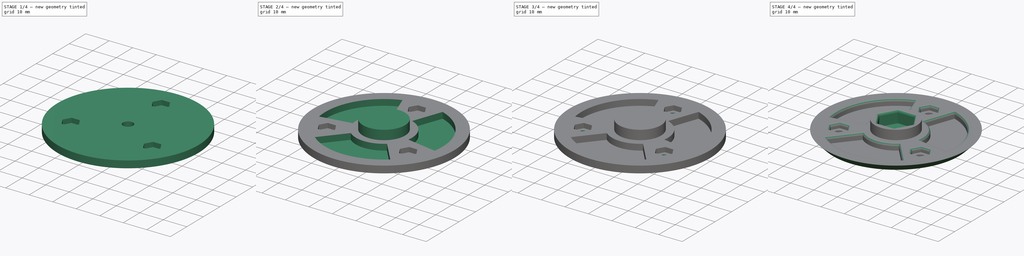
[diagram: build sequence overview — one tinted view per stage of 4, left to right]
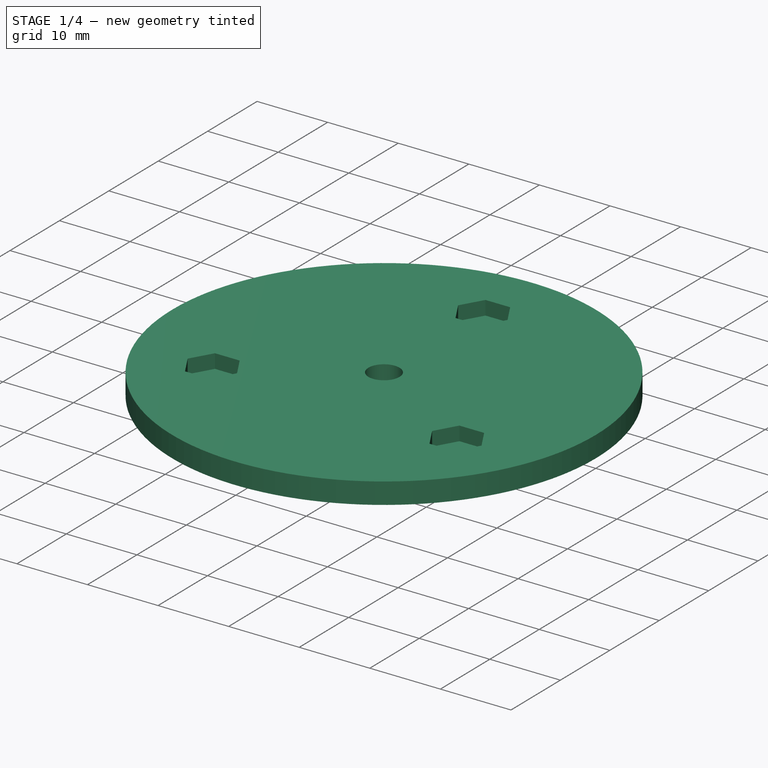
[diagram: stage 1 of 4 — iso view after this stage's code; geometry added in this stage tinted green]
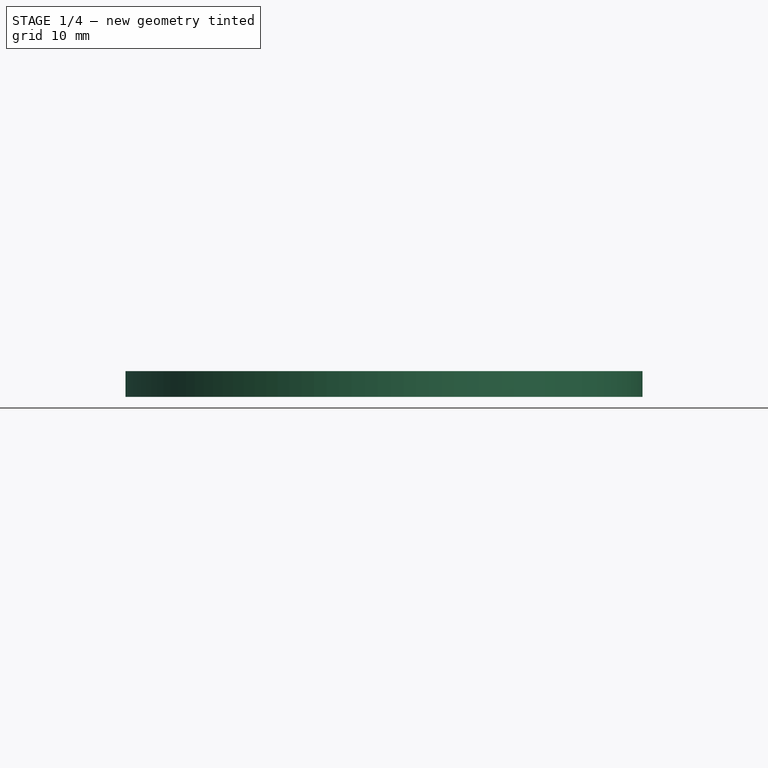
[diagram: stage 1 of 4 — front view after this stage's code; geometry added in this stage tinted green]
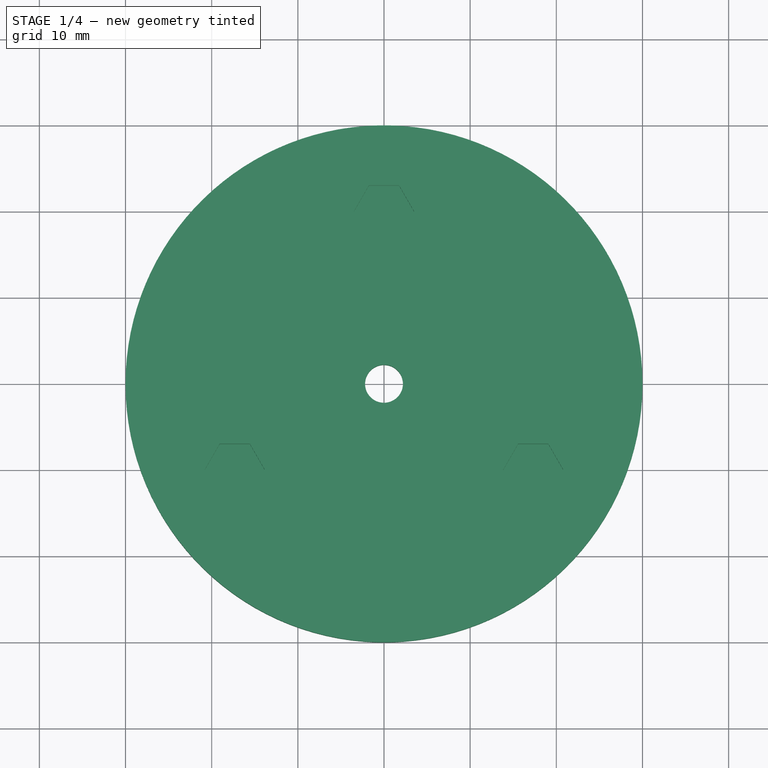
[diagram: stage 1 of 4 — top view after this stage's code; geometry added in this stage tinted green]
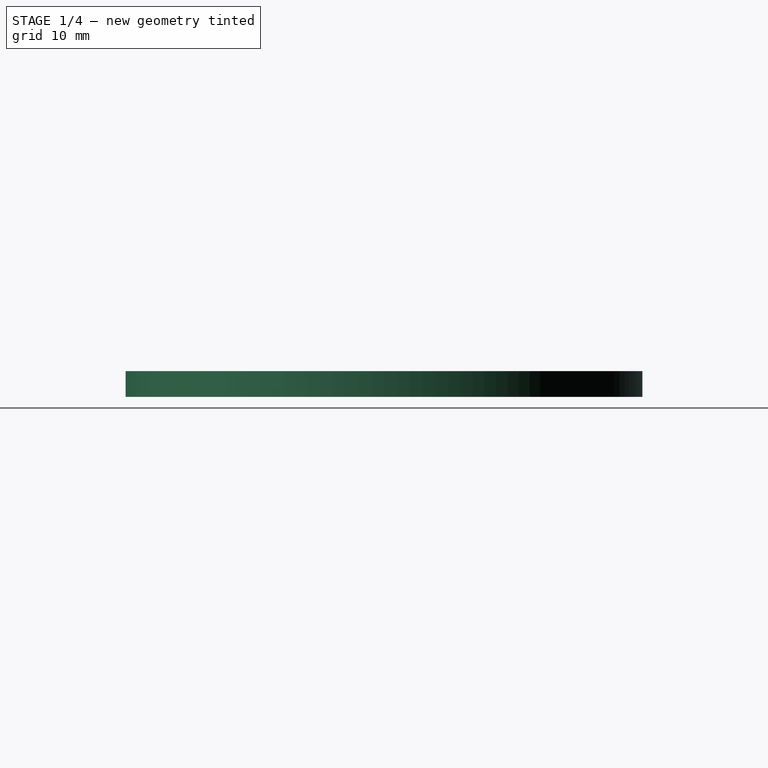
[diagram: stage 1 of 4 — right view after this stage's code; geometry added in this stage tinted green]
FCSTD DOCUMENT  (FreeCAD 0.18R16146 (Git))
Label: hubInside
License: All rights reserved
LicenseURL: http://en.wikipedia.org/wiki/All_rights_reserved
objects: Sketcher::SketchObject×6, PartDesign::Pocket×4, PartDesign::PolarPattern×3, PartDesign::Pad×2, PartDesign::Fillet×1, PartDesign::Chamfer×1, PartDesign::Body×1
note: 24 computed .brp shape members not serialized (recipe doc carries the construction recipe); baked Part::Feature solids carry a one-line shape summary decoded from their .brp

FEATURE [Sketcher::SketchObject] Sketch003
  MapMode = 5
  Placement = pos=(0,0,3) rot=(0,0,1;0rad)
  sketch-geometry (6):
    g0: LineSegment [constr] StartX=0 StartY=0 StartZ=0 EndX=-24.6202 EndY=-4.3412 EndZ=0
    g1: LineSegment [constr] StartX=0 StartY=0 StartZ=0 EndX=-8.5505 EndY=23.4923 EndZ=0
    g2: ArcOfCircle CenterX=0 CenterY=0 CenterZ=0 NormalX=0 NormalY=0 NormalZ=1 AngleXU=0 Radius=25 StartAngle=1.91986 EndAngle=3.31613
    g3: ArcOfCircle CenterX=0 CenterY=0 CenterZ=0 NormalX=0 NormalY=0 NormalZ=1 AngleXU=0 Radius=12 StartAngle=1.91986 EndAngle=3.31613
    g4: LineSegment StartX=-24.6202 StartY=-4.3412 StartZ=0 EndX=-11.8177 EndY=-2.08378 EndZ=0
    g5: LineSegment StartX=-8.5505 StartY=23.4923 StartZ=0 EndX=-4.10424 EndY=11.2763 EndZ=0
  constraints (16):
    c: Coincident(g0,g-1)
    c: Coincident(g1,g-1)
    c: Angle(g1,g0) = 1.39626
    c: Angle(g-2,g1) = 0.349066
    c: Coincident(g2,g-1)
    c: Radius(g2) = 25
    c: Radius(g3) = 12
    c: PointOnObject(g3,g1)
    c: PointOnObject(g3,g0)
    c: Coincident(g2,g1)
    c: Coincident(g2,g0)
    c: Coincident(g4,g2)
    c: Coincident(g4,g3)
    c: Coincident(g2,g3)
    c: Coincident(g5,g3)
    c: Coincident(g5,g1)
FEATURE [Sketcher::SketchObject] Sketch004
  MapMode = 5
  Support = -> [XY_Plane001]
  sketch-geometry (2):
    g0: Circle CenterX=0 CenterY=0 CenterZ=0 NormalX=0 NormalY=0 NormalZ=1 AngleXU=0 Radius=30
    g1: Circle CenterX=0 CenterY=0 CenterZ=0 NormalX=0 NormalY=0 NormalZ=1 AngleXU=0 Radius=2.2
  constraints (4):
    c: Coincident(g0,g-1)
    c: Radius(g0) = 30
    c: Coincident(g1,g0)
    c: Radius(g1) = 2.2
FEATURE [PartDesign::Pad] Pad001  label="Plate"
  Length = 3
  Length2 = 100
  Profile = -> Sketch004
  Type = 0
FEATURE [Sketcher::SketchObject] Sketch006
  MapMode = 5
  Placement = pos=(0,0,3) rot=(0,0,1;0rad)
  sketch-geometry (1):
    g0: Circle CenterX=0 CenterY=0 CenterZ=0 NormalX=0 NormalY=0 NormalZ=1 AngleXU=0 Radius=9
  constraints (2):
    c: Coincident(g0,g-1)
    c: Radius(g0) = 9
FEATURE [Sketcher::SketchObject] Sketch005
  MapMode = 5
  Placement = pos=(0,0,3) rot=(0,0,1;0rad)
  Support = -> [Pad001]
  sketch-geometry (14):
    g0: Circle [constr] CenterX=0 CenterY=20 CenterZ=0 NormalX=0 NormalY=0 NormalZ=1 AngleXU=0 Radius=3.5
    g1: LineSegment [constr] StartX=0 StartY=20 StartZ=0 EndX=0 EndY=0 EndZ=0
    g2: LineSegment [constr] StartX=0 StartY=20 StartZ=0 EndX=1.75 EndY=16.9689 EndZ=0
    g3: LineSegment [constr] StartX=0 StartY=20 StartZ=0 EndX=3.5 EndY=20 EndZ=0
    g4: LineSegment [constr] StartX=0 StartY=20 StartZ=0 EndX=1.75 EndY=23.0311 EndZ=0
    g5: LineSegment [constr] StartX=0 StartY=20 StartZ=0 EndX=-1.75 EndY=23.0311 EndZ=0
    g6: LineSegment [constr] StartX=0 StartY=20 StartZ=0 EndX=-3.5 EndY=20 EndZ=0
    g7: LineSegment [constr] StartX=0 StartY=20 StartZ=0 EndX=-1.75 EndY=16.9689 EndZ=0
    g8: LineSegment StartX=-1.75 StartY=23.0311 StartZ=0 EndX=1.75 EndY=23.0311 EndZ=0
    g9: LineSegment StartX=1.75 StartY=23.0311 StartZ=0 EndX=3.5 EndY=20 EndZ=0
    g10: LineSegment StartX=3.5 StartY=20 StartZ=0 EndX=1.75 EndY=16.9689 EndZ=0
    g11: LineSegment StartX=1.75 StartY=16.9689 StartZ=0 EndX=-1.75 EndY=16.9689 EndZ=0
    g12: LineSegment StartX=-1.75 StartY=16.9689 StartZ=0 EndX=-3.5 EndY=20 EndZ=0
    g13: LineSegment StartX=-3.5 StartY=20 StartZ=0 EndX=-1.75 EndY=23.0311 EndZ=0
  constraints (35):
    c: Radius(g0) = 3.5
    c: Coincident(g1,g0)
    c: Coincident(g1,g-1)
    c: Distance(g1) = 20
    c: PointOnObject(g0,g-2)
    c: Coincident(g2,g0)
    c: PointOnObject(g2,g0)
    c: Angle(g-2,g2) = 0.523599
    c: Coincident(g3,g0)
    c: PointOnObject(g3,g0)
    c: Coincident(g4,g0)
    c: PointOnObject(g4,g0)
    c: Coincident(g5,g0)
    c: PointOnObject(g5,g0)
    c: Coincident(g6,g0)
    c: PointOnObject(g6,g0)
    c: Coincident(g7,g0)
    c: PointOnObject(g7,g0)
    c: Angle(g2,g3) = 1.0472
    c: Angle(g3,g4) = 1.0472
    c: Angle(g4,g5) = 1.0472
    c: Angle(g6,g7) = 1.0472
    c: Angle(g5,g6) = 1.0472
    c: Coincident(g8,g5)
    c: Coincident(g8,g4)
    c: Coincident(g9,g8)
    c: Coincident(g9,g3)
    c: Coincident(g10,g9)
    c: Coincident(g10,g2)
    c: Coincident(g11,g10)
    c: Coincident(g11,g7)
    c: Coincident(g12,g11)
    c: Coincident(g12,g6)
    c: Coincident(g13,g12)
    c: Coincident(g13,g8)
FEATURE [PartDesign::Pocket] Pocket004  label="Nut"
  BaseFeature = -> Pad001
  Length = 2
  Length2 = 100
  Profile = -> Sketch005
  Type = 0
FEATURE [PartDesign::PolarPattern] PolarPattern002  label="Nuts"
  Angle = 360
  Axis = -> Sketch005 [N_Axis]
  BaseFeature = -> Pocket004
  Occurrences = 3
  Originals = -> [Pocket004]
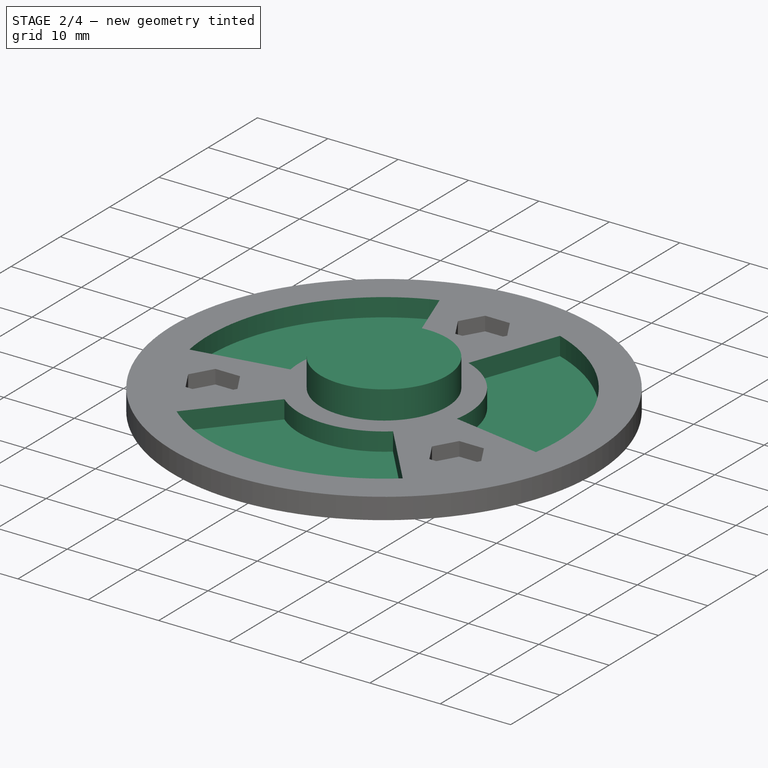
[diagram: stage 2 of 4 — iso view after this stage's code; geometry added in this stage tinted green]
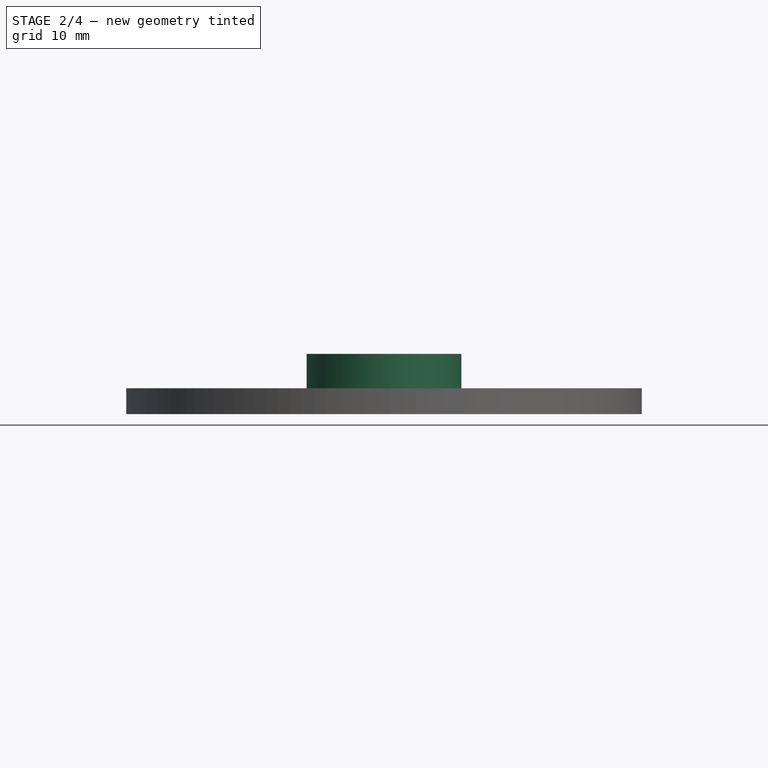
[diagram: stage 2 of 4 — front view after this stage's code; geometry added in this stage tinted green]
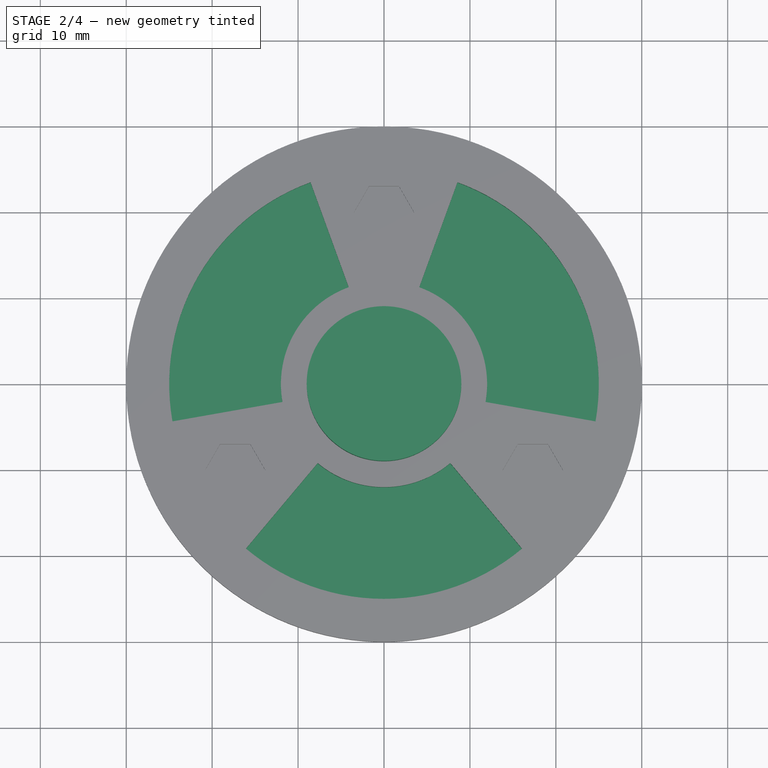
[diagram: stage 2 of 4 — top view after this stage's code; geometry added in this stage tinted green]
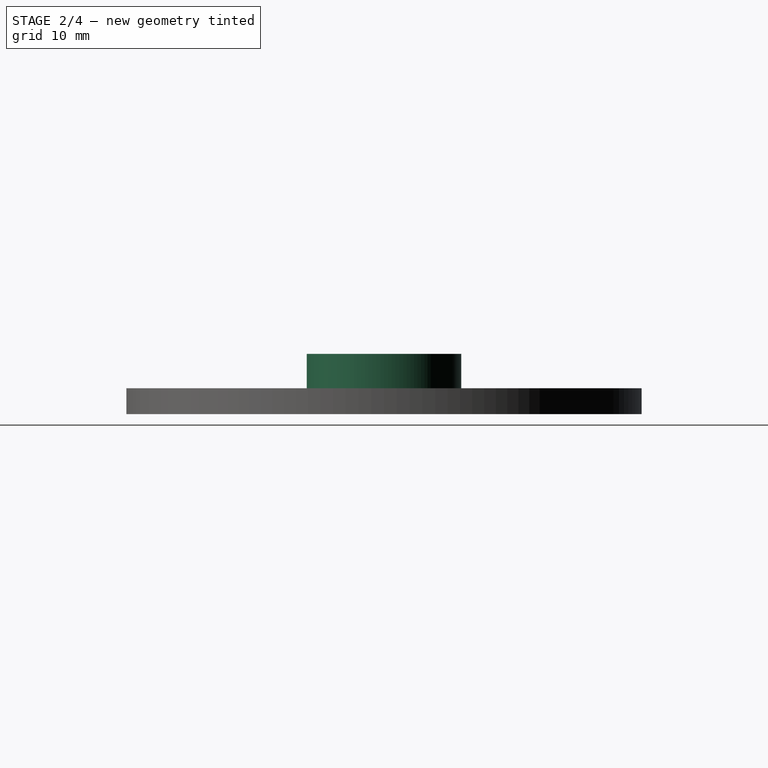
[diagram: stage 2 of 4 — right view after this stage's code; geometry added in this stage tinted green]
FEATURE [PartDesign::Pocket] Pocket002  label="Cutout"
  BaseFeature = -> PolarPattern002
  Length = 2.6
  Length2 = 100
  Profile = -> Sketch003
  Type = 0
FEATURE [PartDesign::PolarPattern] PolarPattern004  label="Cutouts"
  Angle = 360
  Axis = -> Sketch003 [N_Axis]
  BaseFeature = -> Pocket002
  Occurrences = 3
  Originals = -> [Pocket002]
FEATURE [PartDesign::Pad] Pad  label="CenterRaise"
  BaseFeature = -> PolarPattern004
  Length = 4
  Length2 = 100
  Profile = -> Sketch006
  Type = 0
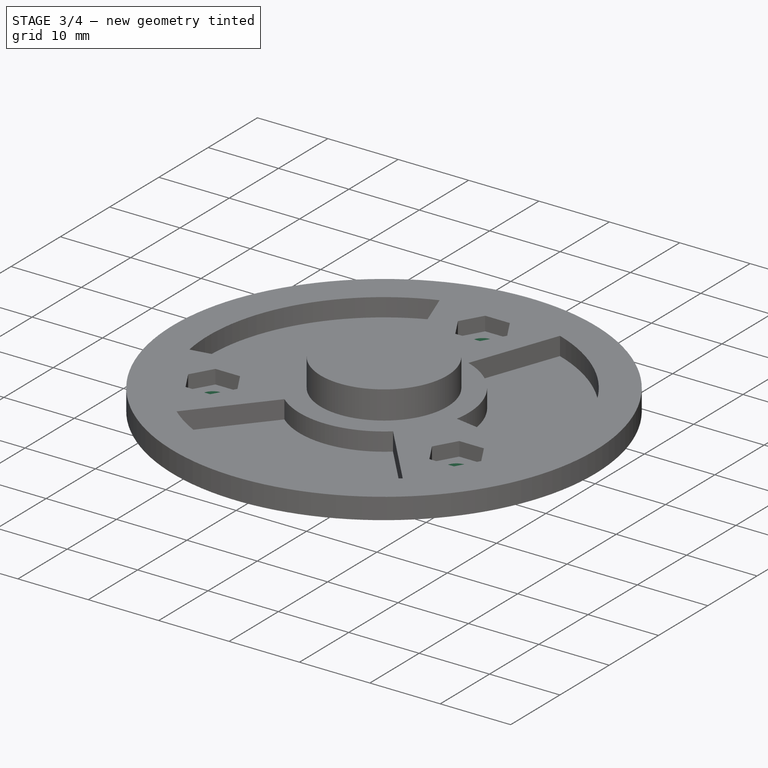
[diagram: stage 3 of 4 — iso view after this stage's code; geometry added in this stage tinted green]
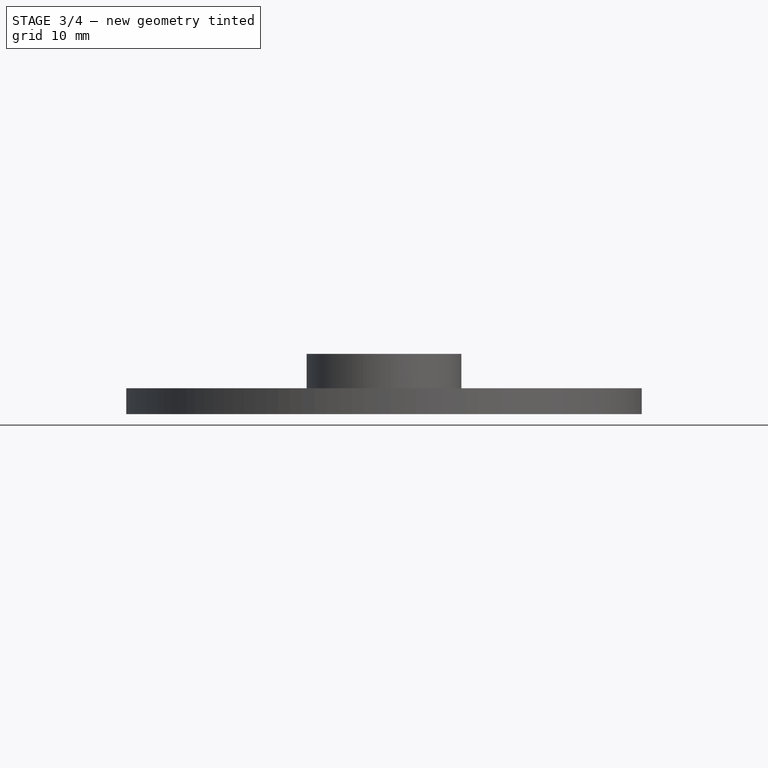
[diagram: stage 3 of 4 — front view after this stage's code; geometry added in this stage tinted green]
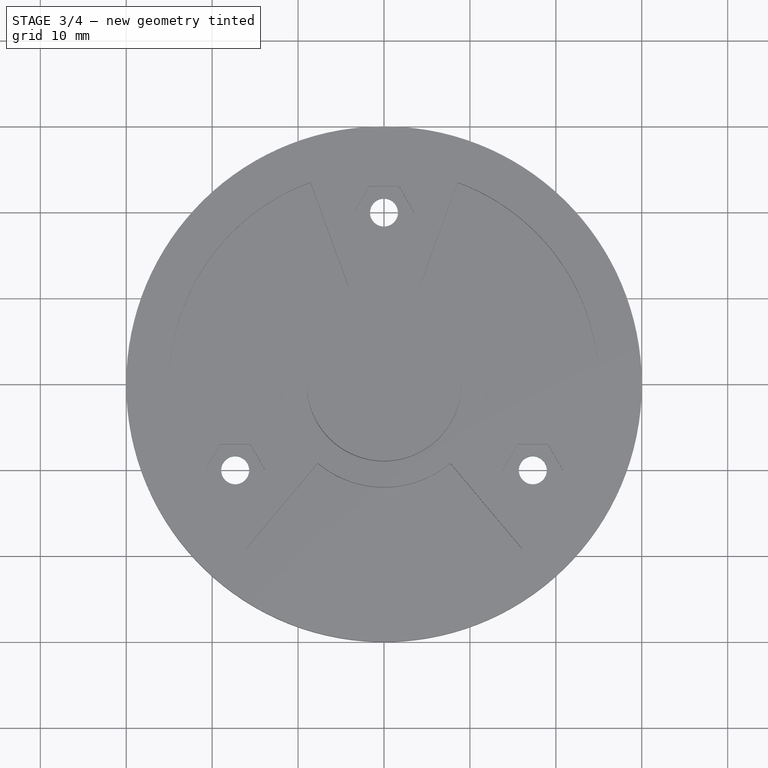
[diagram: stage 3 of 4 — top view after this stage's code; geometry added in this stage tinted green]
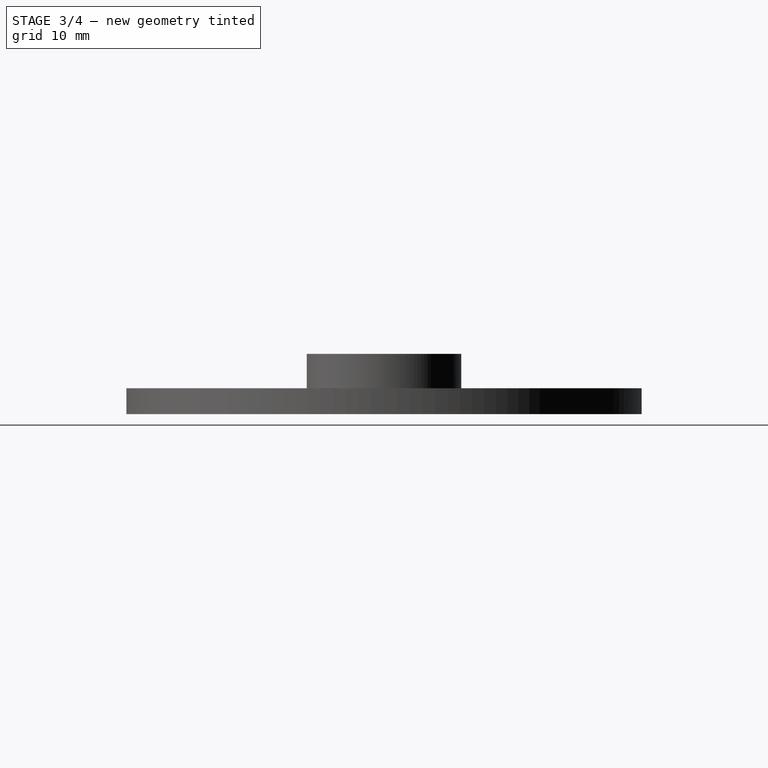
[diagram: stage 3 of 4 — right view after this stage's code; geometry added in this stage tinted green]
FEATURE [Sketcher::SketchObject] Sketch007
  ExternalGeometry = -> [Sketch005]
  MapMode = 5
  Placement = pos=(0,0,3) rot=(0,0,1;0rad)
  Support = -> [PolarPattern002]
  sketch-geometry (3):
    g0: Circle CenterX=-3e-16 CenterY=20 CenterZ=0 NormalX=0 NormalY=0 NormalZ=1 AngleXU=0 Radius=1.625
    g1: LineSegment [constr] StartX=-1.75 StartY=23.0311 StartZ=0 EndX=1.75 EndY=16.9689 EndZ=0
    g2: LineSegment [constr] StartX=1.75 StartY=23.0311 StartZ=0 EndX=-1.75 EndY=16.9689 EndZ=0
  constraints (7):
    c: Radius(g0) = 1.625
    c: Coincident(g1,g-3)
    c: Coincident(g1,g-4)
    c: Coincident(g2,g-3)
    c: Coincident(g2,g-4)
    c: PointOnObject(g0,g2)
    c: PointOnObject(g0,g1)
FEATURE [PartDesign::Pocket] Pocket  label="NutHole"
  BaseFeature = -> Pad
  Length = 5
  Length2 = 100
  Profile = -> Sketch007
  Type = 0
FEATURE [PartDesign::PolarPattern] PolarPattern  label="NutHoles"
  Angle = 360
  Axis = -> Sketch007 [N_Axis]
  BaseFeature = -> Pocket
  Occurrences = 3
  Originals = -> [Pocket]
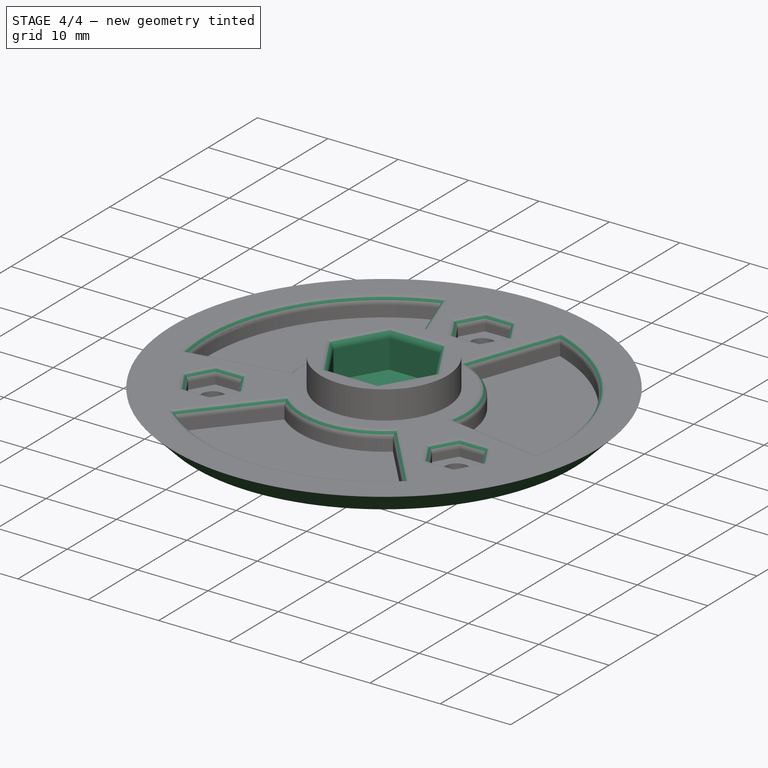
[diagram: stage 4 of 4 — iso view after this stage's code; geometry added in this stage tinted green]
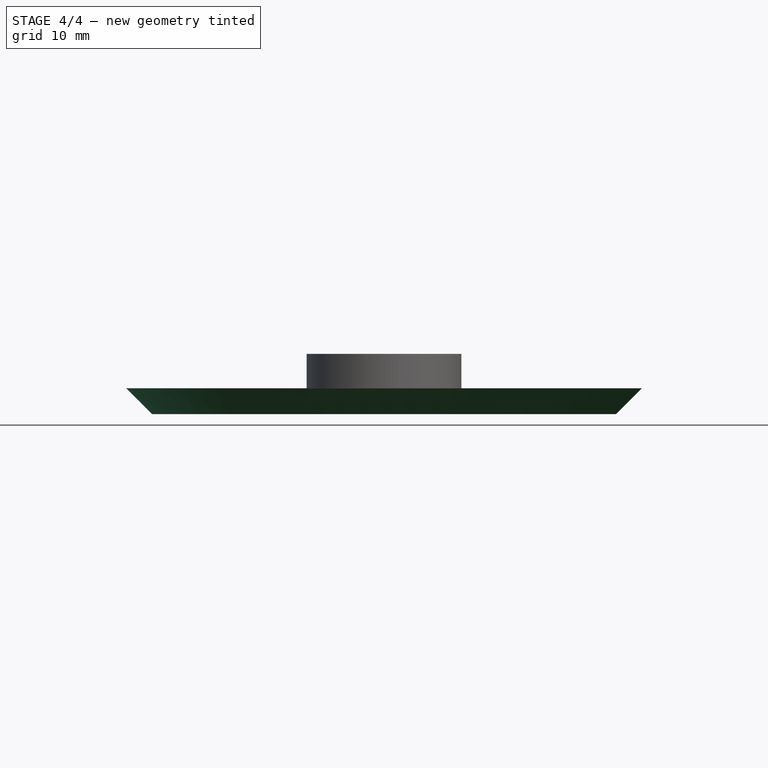
[diagram: stage 4 of 4 — front view after this stage's code; geometry added in this stage tinted green]
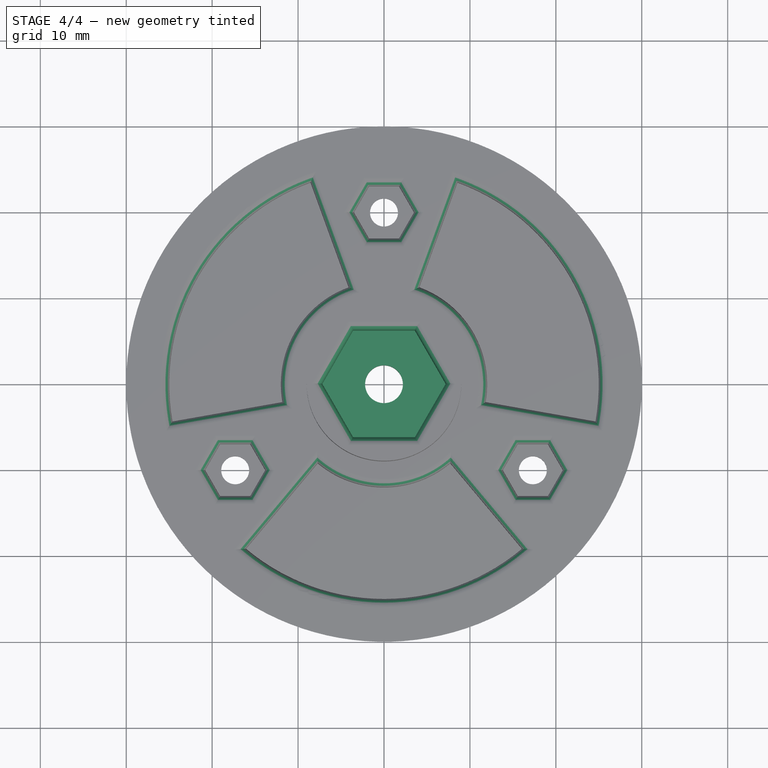
[diagram: stage 4 of 4 — top view after this stage's code; geometry added in this stage tinted green]
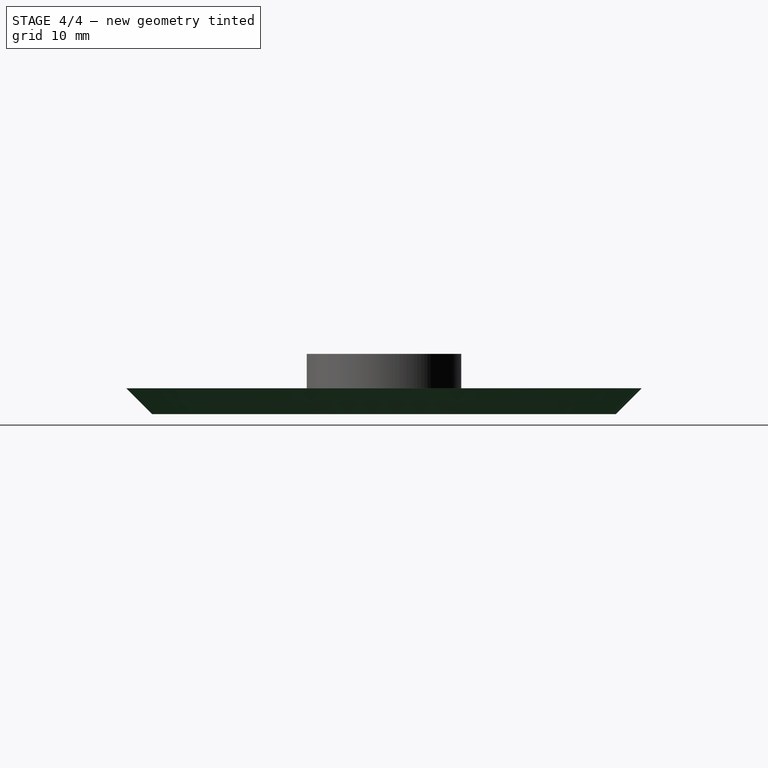
[diagram: stage 4 of 4 — right view after this stage's code; geometry added in this stage tinted green]
FEATURE [Sketcher::SketchObject] Sketch
  MapMode = 5
  Placement = pos=(0,0,7) rot=(0,0,1;0rad)
  Support = -> [PolarPattern]
  sketch-geometry (13):
    g0: Circle [constr] CenterX=1e-16 CenterY=1e-16 CenterZ=0 NormalX=0 NormalY=0 NormalZ=1 AngleXU=0 Radius=7.2
    g1: LineSegment [constr] StartX=0 StartY=0 StartZ=0 EndX=-3.6 EndY=6.23538 EndZ=0
    g2: LineSegment [constr] StartX=0 StartY=0 StartZ=0 EndX=3.6 EndY=6.23538 EndZ=0
    g3: LineSegment [constr] StartX=0 StartY=0 StartZ=0 EndX=7.2 EndY=4.2e-15 EndZ=0
    g4: LineSegment [constr] StartX=0 StartY=0 StartZ=0 EndX=3.6 EndY=-6.23538 EndZ=0
    g5: LineSegment [constr] StartX=0 StartY=0 StartZ=0 EndX=-7.2 EndY=-4.1e-15 EndZ=0
    g6: LineSegment [constr] StartX=0 StartY=0 StartZ=0 EndX=-3.6 EndY=-6.23538 EndZ=0
    g7: LineSegment StartX=-3.6 StartY=6.23538 StartZ=0 EndX=3.6 EndY=6.23538 EndZ=0
    g8: LineSegment StartX=3.6 StartY=6.23538 StartZ=0 EndX=7.2 EndY=4.4e-15 EndZ=0
    g9: LineSegment StartX=7.2 StartY=4.2e-15 StartZ=0 EndX=3.6 EndY=-6.23538 EndZ=0
    g10: LineSegment StartX=3.6 StartY=-6.23538 StartZ=0 EndX=-3.6 EndY=-6.23538 EndZ=0
    g11: LineSegment StartX=-3.6 StartY=-6.23538 StartZ=0 EndX=-7.2 EndY=-4.4e-15 EndZ=0
    g12: LineSegment StartX=-7.2 StartY=-4.1e-15 StartZ=0 EndX=-3.6 EndY=6.23538 EndZ=0
  constraints (32):
    c: Coincident(g0,g-1)
    c: Radius(g0) = 7.2
    c: Coincident(g1,g-1)
    c: PointOnObject(g1,g0)
    c: Coincident(g2,g-1)
    c: PointOnObject(g2,g0)
    c: Coincident(g3,g-1)
    c: PointOnObject(g3,g0)
    c: Coincident(g4,g-1)
    c: PointOnObject(g4,g0)
    c: Coincident(g5,g-1)
    c: PointOnObject(g5,g0)
    c: Coincident(g6,g-1)
    c: PointOnObject(g6,g0)
    c: Angle(g2,g-2) = 0.523599
    c: Angle(g2,g1) = 1.0472
    c: Angle(g1,g5) = 1.0472
    c: Angle(g5,g6) = 1.0472
    c: Angle(g6,g4) = 1.0472
    c: Angle(g4,g3) = 1.0472
    c: Coincident(g7,g1)
    c: Coincident(g7,g2)
    c: Coincident(g8,g7)
    c: Coincident(g8,g3)
    c: Coincident(g9,g8)
    c: Coincident(g9,g4)
    c: Coincident(g10,g9)
    c: Coincident(g10,g6)
    c: Coincident(g11,g10)
    c: Coincident(g11,g5)
    c: Coincident(g12,g11)
    c: Coincident(g12,g7)
FEATURE [PartDesign::Pocket] Pocket005  label="MainNut"
  BaseFeature = -> PolarPattern
  Length = 5
  Length2 = 100
  Profile = -> Sketch
  Type = 0
FEATURE [PartDesign::Fillet] Fillet
  Base = -> Pocket005 [Edge26,Edge28,Edge29,Edge27,Edge25,Edge24,Edge31,Edge30,Edge33,Edge32,Edge23,Edge22,Edge21,Edge19,Edge18,Edge20,Edge11,Edge9,Edge10,Edge8,Edge13,Edge12,Edge14,Edge16,Edge17,Edge15,Edge35,Edge34,Edge36,Edge37,Edge120,Edge119,Edge118,Edge117,Edge116,Edge115]
  BaseFeature = -> Pocket005
  Radius = 1
FEATURE [PartDesign::Chamfer] Chamfer
  Base = -> Fillet [Edge46]
  BaseFeature = -> Fillet
  Size = 2.99
FEATURE [PartDesign::Body] Body001
  Group = -> [Sketch004,Pad001,Sketch005,Pocket004,PolarPattern002,Sketch003,Pocket002,PolarPattern004,Sketch,Sketch006,Pad,Sketch007,Pocket,PolarPattern,Pocket005,Fillet,Chamfer]
  Origin = -> Origin001
  Tip = -> Chamfer
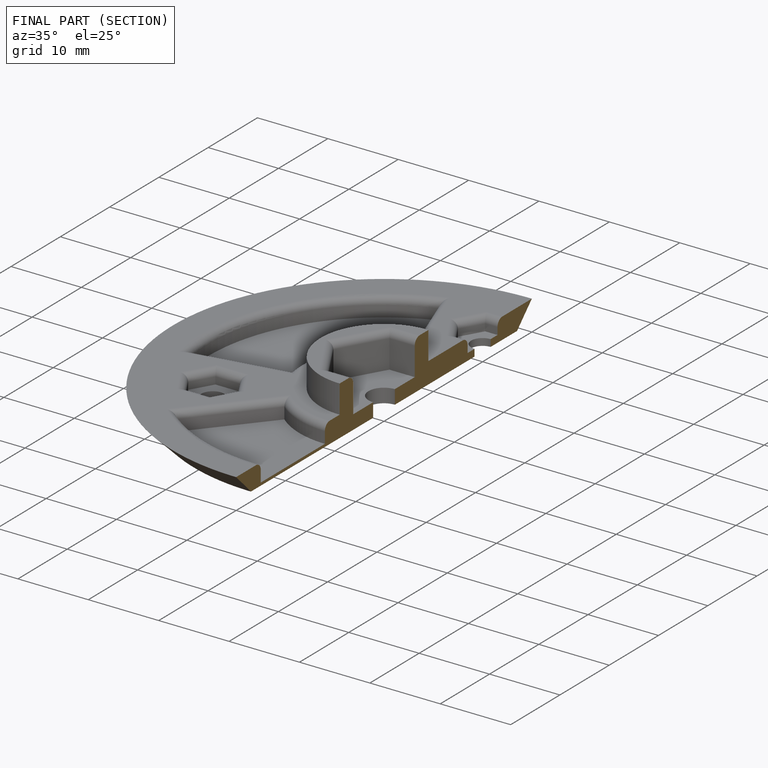
[diagram: finished part — half-section view (interior)]
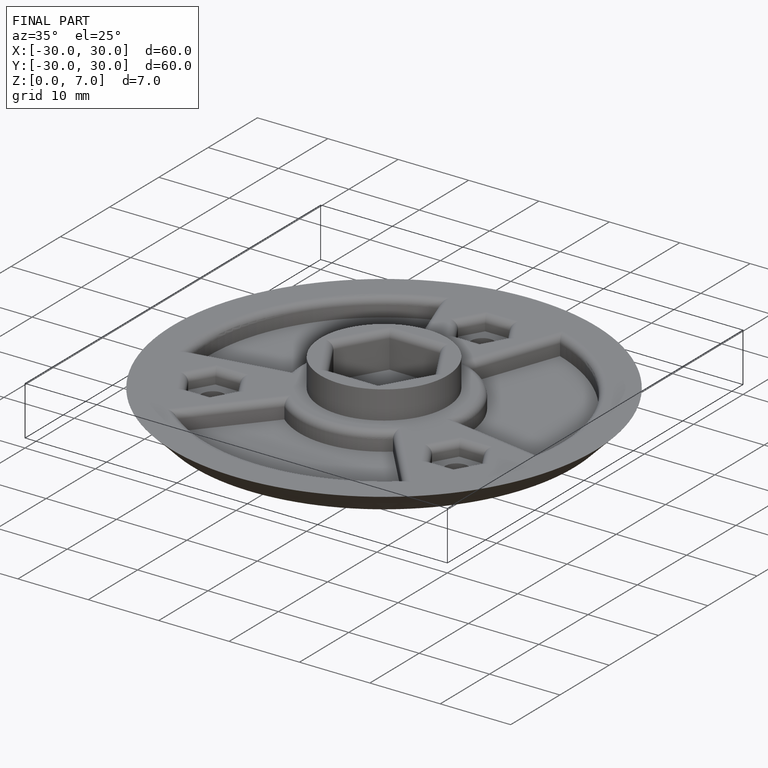
[diagram: finished part — iso view with bounding-box wireframe]
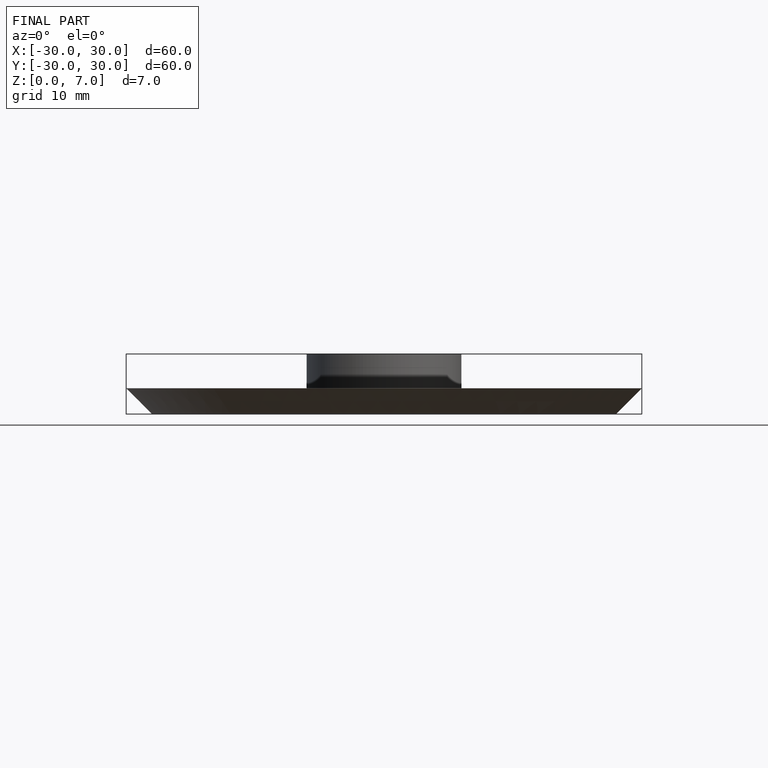
[diagram: finished part — front view with bounding-box wireframe]
